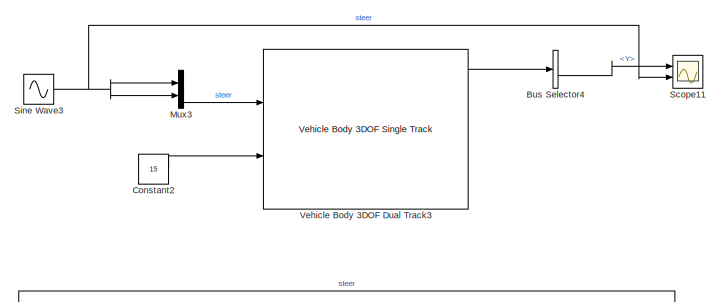
[diagram: root canvas - part 1/2, top center region]
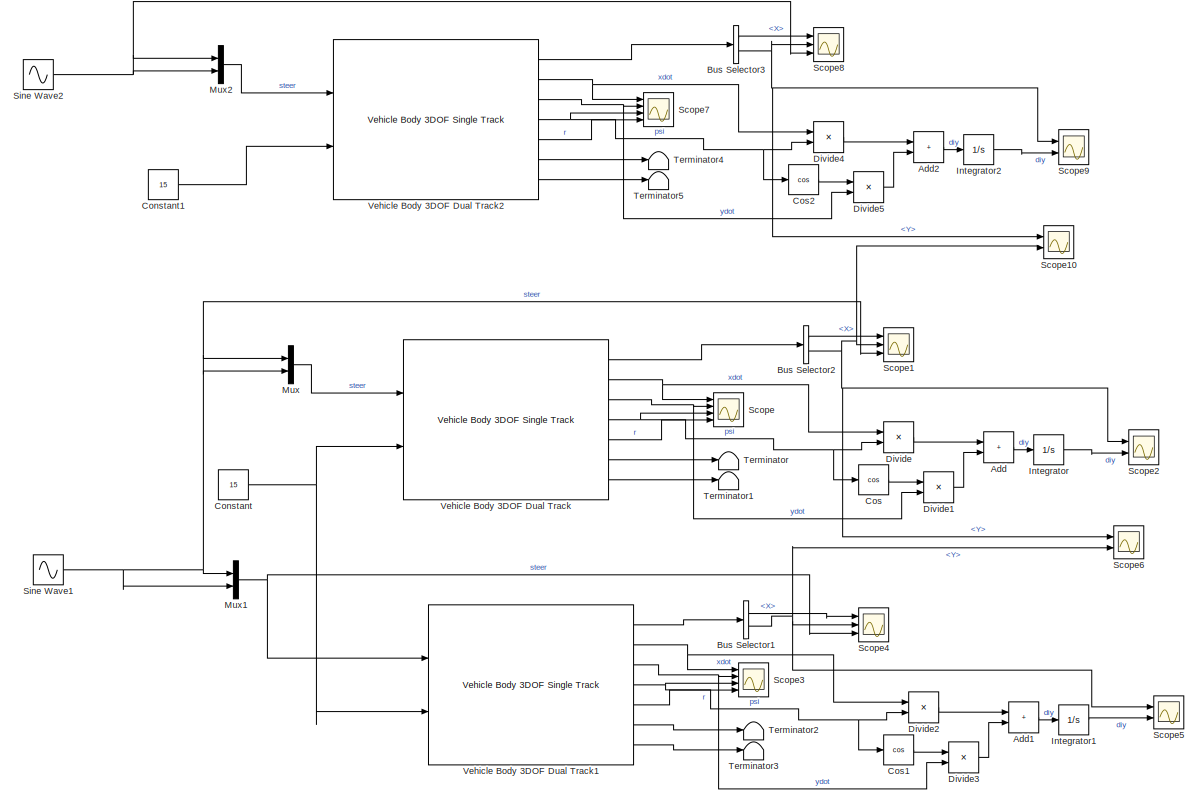
[diagram: root canvas - part 2/2, full width, middle band]
MODEL slx_eefc3be2aa6a
KIND model
CONFIG AbsTol = auto
CONFIG EnableMultiTasking = off
CONFIG FixedStep = auto
CONFIG MaxStep = auto
CONFIG MinStep = auto
CONFIG RelTol = 1e-3
CONFIG SampleTimeConstraint = Unconstrained
CONFIG SolverName = VariableStepAuto
CONFIG StartTime = 0.0
CONFIG StopTime = 15
BLOCK [Sum] Add
  Commented = on
  IconShape = rectangular
  Ports = [2, 1]
BLOCK [Sum] Add1
  Commented = on
  IconShape = rectangular
  Ports = [2, 1]
BLOCK [Sum] Add2
  Commented = on
  IconShape = rectangular
  Ports = [2, 1]
BLOCK [BusSelector] Bus Selector1
  Commented = on
  OutputSignals = InertFrm.Cg.Disp.X,InertFrm.Cg.Disp.Y
  Ports = [1, 2]
BLOCK [BusSelector] Bus Selector2
  Commented = on
  OutputSignals = InertFrm.Cg.Disp.X,InertFrm.Cg.Disp.Y
  Ports = [1, 2]
BLOCK [BusSelector] Bus Selector3
  Commented = on
  OutputSignals = InertFrm.Cg.Disp.X,InertFrm.Cg.Disp.Y
  Ports = [1, 2]
BLOCK [BusSelector] Bus Selector4
  OutputSignals = InertFrm.Cg.Disp.X,InertFrm.Cg.Disp.Y
  Ports = [1, 2]
BLOCK [Constant] Constant
  Commented = on
  Value = 15
BLOCK [Constant] Constant1
  Commented = on
  Value = 15
BLOCK [Constant] Constant2
  Value = 15
BLOCK [Trigonometry] Cos
  Commented = on
  Operator = cos
  Ports = [1, 1]
BLOCK [Trigonometry] Cos1
  Commented = on
  Operator = cos
  Ports = [1, 1]
BLOCK [Trigonometry] Cos2
  Commented = on
  Operator = cos
  Ports = [1, 1]
BLOCK [Product] Divide
  Commented = on
  Inputs = **
  Ports = [2, 1]
BLOCK [Product] Divide1
  Commented = on
  Inputs = **
  Ports = [2, 1]
BLOCK [Product] Divide2
  Commented = on
  Inputs = **
  Ports = [2, 1]
BLOCK [Product] Divide3
  Commented = on
  Inputs = **
  Ports = [2, 1]
BLOCK [Product] Divide4
  Commented = on
  Inputs = **
  Ports = [2, 1]
BLOCK [Product] Divide5
  Commented = on
  Inputs = **
  Ports = [2, 1]
BLOCK [Integrator] Integrator
  Commented = on
  Ports = [1, 1]
BLOCK [Integrator] Integrator1
  Commented = on
  Ports = [1, 1]
BLOCK [Integrator] Integrator2
  Commented = on
  Ports = [1, 1]
BLOCK [Mux] Mux
  Commented = on
  DisplayOption = bar
  Inputs = 2
  Ports = [2, 1]
BLOCK [Mux] Mux1
  Commented = on
  DisplayOption = bar
  Inputs = 2
  Ports = [2, 1]
BLOCK [Mux] Mux2
  Commented = on
  DisplayOption = bar
  Inputs = 2
  Ports = [2, 1]
BLOCK [Mux] Mux3
  DisplayOption = bar
  Inputs = 2
  Ports = [2, 1]
BLOCK [Scope] Scope
  Commented = on
  Floating = off
  NumInputPorts = 4
  Ports = [4]
  ScopeSpecificationString = Simulink.scopes.TimeScopeBlockCfg('CurrentConfiguration', extmgr.ConfigurationSet(extmgr.Configuration('Core','General UI',true),extmgr.Configuration('Core','Source UI',true),extmgr.Configuration('Sources','WiredSimulink',true),extmgr.Configuration('Visuals','Time Domain',true,'SerializedDisplays',{struct('MinYLimReal','14.54232','MaxYLimReal','15.05085','YLabelReal','','MinYLimMag','14.54232','Ma...<+3408ch>
BLOCK [Scope] Scope1
  Commented = on
  Floating = off
  NumInputPorts = 3
  Ports = [3]
  ScopeSpecificationString = Simulink.scopes.TimeScopeBlockCfg('CurrentConfiguration', extmgr.ConfigurationSet(extmgr.Configuration('Core','General UI',true),extmgr.Configuration('Core','Source UI',true),extmgr.Configuration('Sources','WiredSimulink',true,'DataLoggingVariableName','ScopeData1'),extmgr.Configuration('Visuals','Time Domain',true,'SerializedDisplays',{struct('MinYLimReal','-23.00772','MaxYLimReal','207.06946','Y...<+3784ch>
BLOCK [Scope] Scope10
  Commented = on
  Floating = off
  NumInputPorts = 2
  Ports = [2]
  ScopeSpecificationString = Simulink.scopes.TimeScopeBlockCfg('CurrentConfiguration', extmgr.ConfigurationSet(extmgr.Configuration('Core','General UI',true),extmgr.Configuration('Core','Source UI',true),extmgr.Configuration('Sources','WiredSimulink',true,'DataLoggingVariableName','ScopeData2'),extmgr.Configuration('Visuals','Time Domain',true,'SerializedDisplays',{struct('MinYLimReal','-23.12994','MaxYLimReal','23.92178','YL...<+1423ch>
BLOCK [Scope] Scope11
  Floating = off
  NumInputPorts = 2
  Ports = [2]
  ScopeSpecificationString = Simulink.scopes.TimeScopeBlockCfg('CurrentConfiguration', extmgr.ConfigurationSet(extmgr.Configuration('Core','General UI',true),extmgr.Configuration('Core','Source UI',true),extmgr.Configuration('Sources','WiredSimulink',true,'DataLoggingVariableName','ScopeData6'),extmgr.Configuration('Visuals','Time Domain',true,'SerializedDisplays',{struct('MinYLimReal','-33.76146','MaxYLimReal','3.75127','YLa...<+2041ch>
BLOCK [Scope] Scope2
  Commented = on
  Floating = off
  NumInputPorts = 2
  Ports = [2]
  ScopeSpecificationString = Simulink.scopes.TimeScopeBlockCfg('CurrentConfiguration', extmgr.ConfigurationSet(extmgr.Configuration('Core','General UI',true),extmgr.Configuration('Core','Source UI',true),extmgr.Configuration('Sources','WiredSimulink',true,'DataLoggingVariableName','ScopeData2'),extmgr.Configuration('Visuals','Time Domain',true,'SerializedDisplays',{struct('MinYLimReal','-772.24738','MaxYLimReal','920.49789','...<+1435ch>
BLOCK [Scope] Scope3
  Commented = on
  Floating = off
  NumInputPorts = 4
  Ports = [4]
  ScopeSpecificationString = Simulink.scopes.TimeScopeBlockCfg('CurrentConfiguration', extmgr.ConfigurationSet(extmgr.Configuration('Core','General UI',true),extmgr.Configuration('Core','Source UI',true),extmgr.Configuration('Sources','WiredSimulink',true,'DataLoggingVariableName','ScopeData3'),extmgr.Configuration('Visuals','Time Domain',true,'SerializedDisplays',{struct('MinYLimReal','14.56523','MaxYLimReal','15.04831','YLa...<+3448ch>
BLOCK [Scope] Scope4
  Commented = on
  Floating = off
  NumInputPorts = 3
  Ports = [3]
  ScopeSpecificationString = Simulink.scopes.TimeScopeBlockCfg('CurrentConfiguration', extmgr.ConfigurationSet(extmgr.Configuration('Core','General UI',true),extmgr.Configuration('Core','Source UI',true),extmgr.Configuration('Sources','WiredSimulink',true,'DataLoggingVariableName','ScopeData4'),extmgr.Configuration('Visuals','Time Domain',true,'SerializedDisplays',{struct('MinYLimReal','-23.00772','MaxYLimReal','207.06946','Y...<+3796ch>
BLOCK [Scope] Scope5
  Commented = on
  Floating = off
  NumInputPorts = 2
  Ports = [2]
  ScopeSpecificationString = Simulink.scopes.TimeScopeBlockCfg('CurrentConfiguration', extmgr.ConfigurationSet(extmgr.Configuration('Core','General UI',true),extmgr.Configuration('Core','Source UI',true),extmgr.Configuration('Sources','WiredSimulink',true,'DataLoggingVariableName','ScopeData5'),extmgr.Configuration('Visuals','Time Domain',true,'SerializedDisplays',{struct('MinYLimReal','-2.003','MaxYLimReal','18.027','YLabelR...<+1394ch>
BLOCK [Scope] Scope6
  Commented = on
  Floating = off
  NumInputPorts = 2
  Ports = [2]
  ScopeSpecificationString = Simulink.scopes.TimeScopeBlockCfg('CurrentConfiguration', extmgr.ConfigurationSet(extmgr.Configuration('Core','General UI',true),extmgr.Configuration('Core','Source UI',true),extmgr.Configuration('Sources','WiredSimulink',true,'DataLoggingVariableName','ScopeData1'),extmgr.Configuration('Visuals','Time Domain',true,'SerializedDisplays',{struct('MinYLimReal','-23.12994','MaxYLimReal','23.92178','YL...<+1423ch>
BLOCK [Scope] Scope7
  Commented = on
  Floating = off
  NumInputPorts = 4
  Ports = [4]
  ScopeSpecificationString = Simulink.scopes.TimeScopeBlockCfg('CurrentConfiguration', extmgr.ConfigurationSet(extmgr.Configuration('Core','General UI',true),extmgr.Configuration('Core','Source UI',true),extmgr.Configuration('Sources','WiredSimulink',true,'DataLoggingVariableName','ScopeData3'),extmgr.Configuration('Visuals','Time Domain',true,'SerializedDisplays',{struct('MinYLimReal','5.00000','MaxYLimReal','25.00000','YLab...<+3445ch>
BLOCK [Scope] Scope8
  Commented = on
  Floating = off
  NumInputPorts = 3
  Ports = [3]
  ScopeSpecificationString = Simulink.scopes.TimeScopeBlockCfg('CurrentConfiguration', extmgr.ConfigurationSet(extmgr.Configuration('Core','General UI',true),extmgr.Configuration('Core','Source UI',true),extmgr.Configuration('Sources','WiredSimulink',true,'DataLoggingVariableName','ScopeData4'),extmgr.Configuration('Visuals','Time Domain',true,'SerializedDisplays',{struct('MinYLimReal','-23.00772','MaxYLimReal','207.06946','Y...<+3784ch>
BLOCK [Scope] Scope9
  Commented = on
  Floating = off
  NumInputPorts = 2
  Ports = [2]
  ScopeSpecificationString = Simulink.scopes.TimeScopeBlockCfg('CurrentConfiguration', extmgr.ConfigurationSet(extmgr.Configuration('Core','General UI',true),extmgr.Configuration('Core','Source UI',true),extmgr.Configuration('Sources','WiredSimulink',true,'DataLoggingVariableName','ScopeData5'),extmgr.Configuration('Visuals','Time Domain',true,'SerializedDisplays',{struct('MinYLimReal','-772.24738','MaxYLimReal','920.49789','...<+1435ch>
BLOCK [Sin] Sine Wave1
  Amplitude = 0.01
  Commented = on
  Frequency = pi/5
  Ports = [0, 1]
  SampleTime = Ts
BLOCK [Sin] Sine Wave2
  Amplitude = -0.01
  Commented = on
  Frequency = pi/5
  Ports = [0, 1]
  SampleTime = Ts
BLOCK [Sin] Sine Wave3
  Amplitude = -0.01
  Frequency = pi/15
  Ports = [0, 1]
  SampleTime = Ts
BLOCK [Terminator] Terminator
  Commented = on
BLOCK [Terminator] Terminator1
  Commented = on
BLOCK [Terminator] Terminator2
  Commented = on
BLOCK [Terminator] Terminator3
  Commented = on
BLOCK [Terminator] Terminator4
  Commented = on
BLOCK [Terminator] Terminator5
  Commented = on
BLOCK [Reference] Vehicle Body 3DOF Dual Track  REF=autolibshared/Vehicle Body 3DOF Single Track
  Commented = on
  Ports = [2, 7]
  SourceBlock = autolibshared/Vehicle Body 3DOF Single Track
  SourceProductBaseCode = PW,DR,MT,UV,VE
  SourceType = Vehicle Body 3DOF Lateral
BLOCK [Reference] Vehicle Body 3DOF Dual Track1  REF=autolibshared/Vehicle Body 3DOF Single Track
  Commented = on
  Ports = [2, 7]
  SourceBlock = autolibshared/Vehicle Body 3DOF Single Track
  SourceProductBaseCode = PW,DR,MT,UV,VE
  SourceType = Vehicle Body 3DOF Lateral
BLOCK [Reference] Vehicle Body 3DOF Dual Track2  REF=autolibshared/Vehicle Body 3DOF Single Track
  Commented = on
  Ports = [2, 7]
  SourceBlock = autolibshared/Vehicle Body 3DOF Single Track
  SourceProductBaseCode = PW,DR,MT,UV,VE
  SourceType = Vehicle Body 3DOF Lateral
BLOCK [Reference] Vehicle Body 3DOF Dual Track3  REF=autolibshared/Vehicle Body 3DOF Single Track
  Ports = [2, 7]
  SourceBlock = autolibshared/Vehicle Body 3DOF Single Track
  SourceProductBaseCode = PW,DR,MT,UV,VE
  SourceType = Vehicle Body 3DOF Lateral
LINE Add1:1 -> Integrator1:1
LINE Add2:1 -> Integrator2:1
LINE Add:1 -> Integrator:1
LINE Bus Selector1:1 -> Scope4:1
NET Bus Selector1:2 -> Scope4:2, Scope5:1, Scope6:2
LINE Bus Selector2:1 -> Scope1:1
NET Bus Selector2:2 -> Scope10:2, Scope1:2, Scope2:1, Scope6:1
LINE Bus Selector3:1 -> Scope8:1
NET Bus Selector3:2 -> Scope10:1, Scope8:2, Scope9:1
LINE Bus Selector4:2 -> Scope11:1
LINE Constant1:1 -> Vehicle Body 3DOF Dual Track2:2
LINE Constant2:1 -> Vehicle Body 3DOF Dual Track3:2
NET Constant:1 -> Vehicle Body 3DOF Dual Track1:2, Vehicle Body 3DOF Dual Track:2
LINE Cos1:1 -> Divide3:1
LINE Cos2:1 -> Divide5:1
LINE Cos:1 -> Divide1:1
LINE Divide1:1 -> Add:2
LINE Divide2:1 -> Add1:1
LINE Divide3:1 -> Add1:2
LINE Divide4:1 -> Add2:1
LINE Divide5:1 -> Add2:2
LINE Divide:1 -> Add:1
LINE Integrator1:1 -> Scope5:2
LINE Integrator2:1 -> Scope9:2
LINE Integrator:1 -> Scope2:2
NET Mux1:1 -> Scope4:3, Vehicle Body 3DOF Dual Track1:1
LINE Mux2:1 -> Vehicle Body 3DOF Dual Track2:1
LINE Mux3:1 -> Vehicle Body 3DOF Dual Track3:1
LINE Mux:1 -> Vehicle Body 3DOF Dual Track:1
NET Sine Wave1:1 -> Mux1:1, Mux1:2, Mux:1, Mux:2, Scope1:3
NET Sine Wave2:1 -> Mux2:1, Mux2:2, Scope8:3
NET Sine Wave3:1 -> Mux3:1, Mux3:2, Scope11:2
LINE Vehicle Body 3DOF Dual Track1:1 -> Bus Selector1:1
NET Vehicle Body 3DOF Dual Track1:2 -> Divide2:1, Scope3:1
NET Vehicle Body 3DOF Dual Track1:3 -> Divide3:2, Scope3:2
NET Vehicle Body 3DOF Dual Track1:4 -> Cos1:1, Divide2:2, Scope3:3
LINE Vehicle Body 3DOF Dual Track1:5 -> Scope3:4
LINE Vehicle Body 3DOF Dual Track1:6 -> Terminator2:1
LINE Vehicle Body 3DOF Dual Track1:7 -> Terminator3:1
LINE Vehicle Body 3DOF Dual Track2:1 -> Bus Selector3:1
NET Vehicle Body 3DOF Dual Track2:2 -> Divide4:1, Scope7:1
NET Vehicle Body 3DOF Dual Track2:3 -> Divide5:2, Scope7:2
NET Vehicle Body 3DOF Dual Track2:4 -> Cos2:1, Divide4:2, Scope7:3
LINE Vehicle Body 3DOF Dual Track2:5 -> Scope7:4
LINE Vehicle Body 3DOF Dual Track2:6 -> Terminator4:1
LINE Vehicle Body 3DOF Dual Track2:7 -> Terminator5:1
LINE Vehicle Body 3DOF Dual Track3:1 -> Bus Selector4:1
LINE Vehicle Body 3DOF Dual Track:1 -> Bus Selector2:1
NET Vehicle Body 3DOF Dual Track:2 -> Divide:1, Scope:1
NET Vehicle Body 3DOF Dual Track:3 -> Divide1:2, Scope:2
NET Vehicle Body 3DOF Dual Track:4 -> Cos:1, Divide:2, Scope:3
LINE Vehicle Body 3DOF Dual Track:5 -> Scope:4
LINE Vehicle Body 3DOF Dual Track:6 -> Terminator:1
LINE Vehicle Body 3DOF Dual Track:7 -> Terminator1:1
note: NET lines group one-source signal fan-out (src -> all destinations, sorted); 1:1 wires keep LINE
